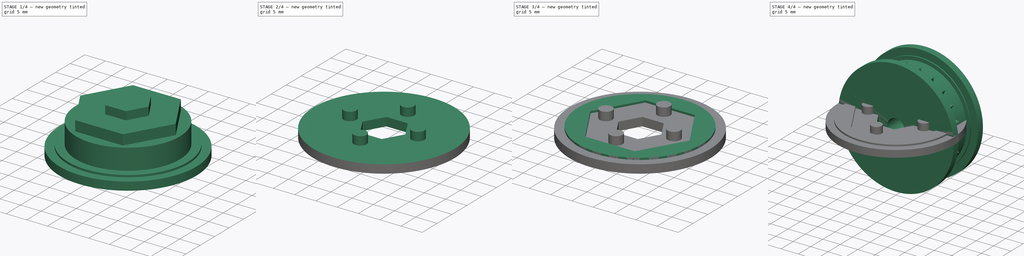
[diagram: build sequence overview — one tinted view per stage of 4, left to right]
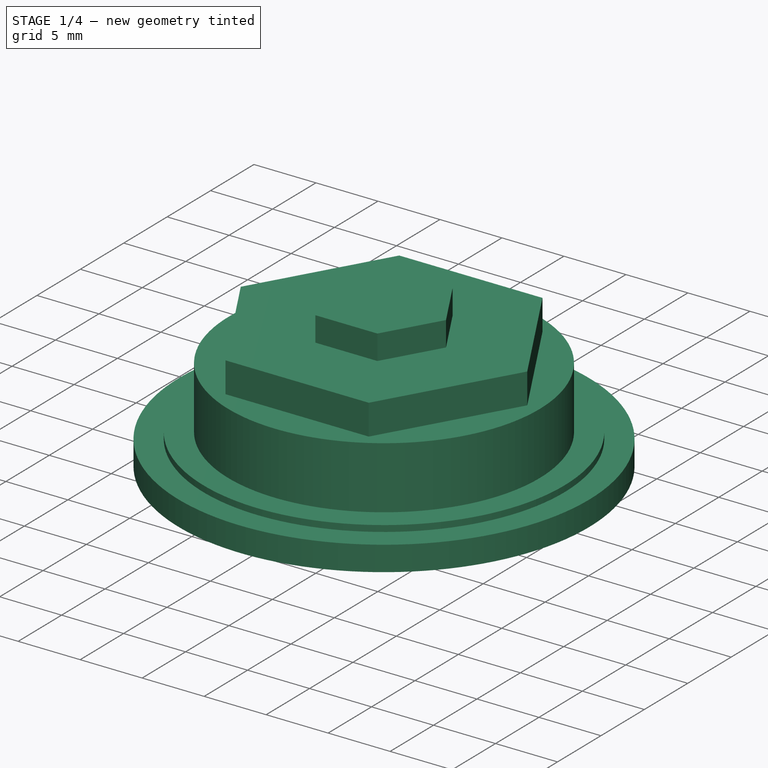
[diagram: stage 1 of 4 — iso view after this stage's code; geometry added in this stage tinted green]
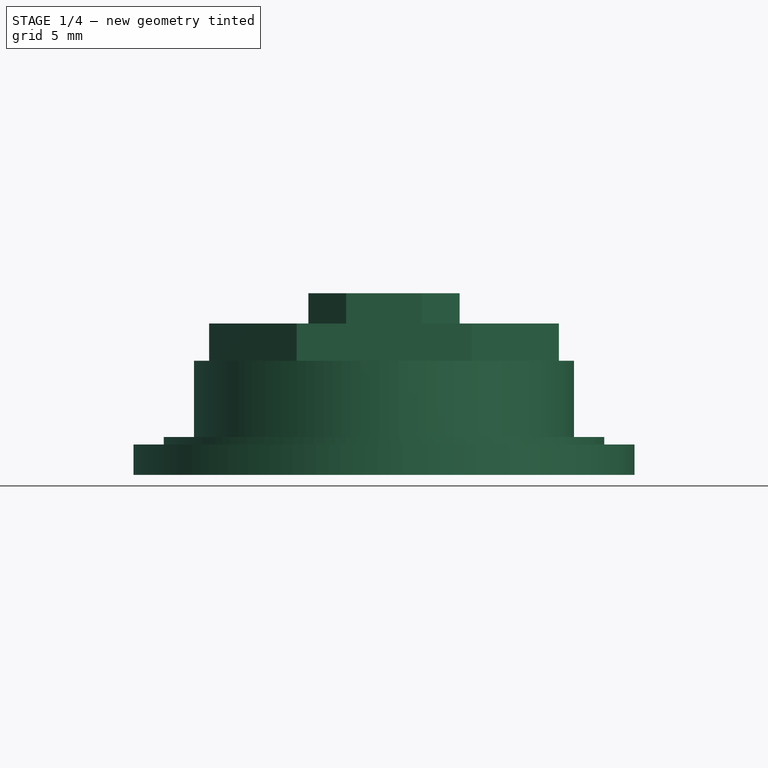
[diagram: stage 1 of 4 — front view after this stage's code; geometry added in this stage tinted green]
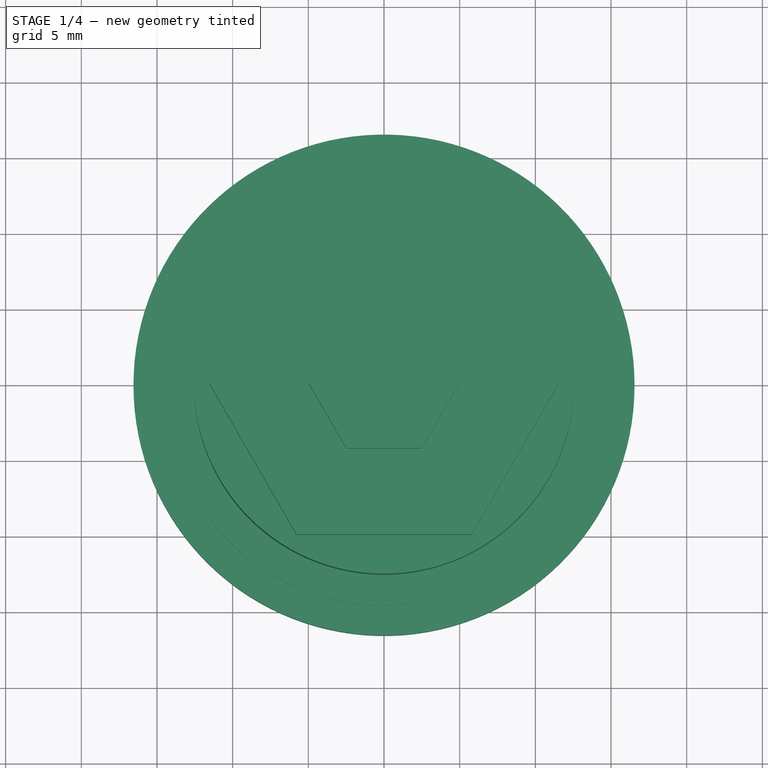
[diagram: stage 1 of 4 — top view after this stage's code; geometry added in this stage tinted green]
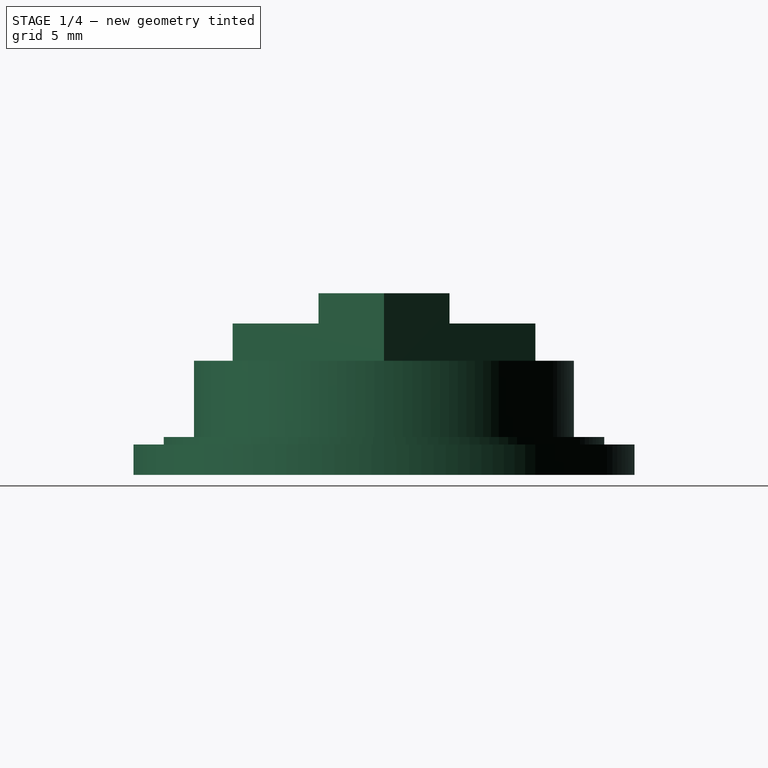
[diagram: stage 1 of 4 — right view after this stage's code; geometry added in this stage tinted green]
FCSTD DOCUMENT  (FreeCAD 0.20R29603 (Git))
Label: sprocketwheel
License: All rights reserved
LicenseURL: http://en.wikipedia.org/wiki/All_rights_reserved
objects: Sketcher::SketchObject×10, PartDesign::Pad×7, PartDesign::Body×4, PartDesign::PolarPattern×3, PartDesign::Revolution×2, Spreadsheet::Sheet×1, PartDesign::Pocket×1, PartDesign::SubShapeBinder×1
note: 38 computed .brp shape members not serialized (recipe doc carries the construction recipe); baked Part::Feature solids carry a one-line shape summary decoded from their .brp

FEATURE [PartDesign::Body] Body  label="complete"
  Group = -> [Sketch,Revolution,Sketch001,Pad,PolarPattern]
  Origin = -> Origin
  Placement = pos=(0,37,12) rot=(-1,0,0;1.5708rad)
  Tip = -> PolarPattern
FEATURE [Sketcher::SketchObject] Sketch008
  FullyConstrained = true
  MapMode = 5
  Placement = pos=(0,0,0) rot=(1,0,0;1.5708rad)
  Support = -> [XZ_Plane001]
  expr: Constraints[12] = 0.5 mm
  expr: Constraints[15] = 8 - (Spreadsheet.sd + Spreadsheet.sw / 2 + Spreadsheet.swm * Spreadsheet.sw / 2)
  expr: Constraints[22] = <<Parameters>>.r1
  sketch-geometry (8):
    g0: LineSegment StartX=2.55 StartY=0 StartZ=0 EndX=16.5531 EndY=0 EndZ=0
    g1: LineSegment StartX=16.5531 StartY=0 StartZ=0 EndX=16.5531 EndY=2 EndZ=0
    g2: LineSegment StartX=16.5531 StartY=2 StartZ=0 EndX=14.5531 EndY=2 EndZ=0
    g3: LineSegment StartX=14.5531 StartY=2 StartZ=0 EndX=14.5531 EndY=2.5 EndZ=0
    g4: LineSegment StartX=14.5531 StartY=2.5 StartZ=0 EndX=12.5531 EndY=2.5 EndZ=0
    g5: LineSegment StartX=12.5531 StartY=2.5 StartZ=0 EndX=12.5531 EndY=7.5345 EndZ=0
    g6: LineSegment StartX=12.5531 StartY=7.5345 StartZ=0 EndX=2.55 EndY=7.5345 EndZ=0
    g7: LineSegment StartX=2.55 StartY=7.5345 StartZ=0 EndX=2.55 EndY=0 EndZ=0
  constraints (24):
    c: PointOnObject(g0,g-1)
    c: PointOnObject(g0,g-1)
    c: Coincident(g0,g1)
    c: Vertical(g1)
    c: Coincident(g1,g2)
    c: Horizontal(g2)
    c: Coincident(g2,g3)
    c: Coincident(g3,g4)
    c: Horizontal(g4)
    c: Coincident(g4,g5)
    c: Vertical(g5)
    c: DistanceY(g1,g1) = 2
    c: DistanceY(g3,g3) = 0.5
    c: Vertical(g3)
    c: DistanceX(g2,g2) = 2
    c: DistanceY(g2,g6) = 5.5345
    c: Horizontal(g6)
    c: Vertical(g0,g6)
    c: DistanceX(g-1,g0) = 2.55
    c: Coincident(g7,g6)
    c: Coincident(g7,g0)
    c: Coincident(g5,g6)
    c: DistanceX(g-1,g3) = 14.5531
    c: DistanceX(g4,g4) = 2
FEATURE [PartDesign::Revolution] Revolution001
  Angle = 360
  Axis = (0,-2e-16,1)
  Base = (0,0,0)
  Placement = pos=(0,0,0) rot=(1,0,0;1.5708rad)
  Profile = -> Sketch008
  ReferenceAxis = -> Sketch008 [V_Axis]
  Refine = true
  Reversed = true
FEATURE [Sketcher::SketchObject] Sketch009
  FullyConstrained = true
  MapMode = 5
  Placement = pos=(0,-1.7e-15,7.5345) rot=(0,0,1;3.14159rad)
  Support = -> [Revolution001]
  expr: Constraints[19] = <<Parameters>>.r1 - 3
  sketch-geometry (7):
    g0: LineSegment StartX=11.5531 StartY=0 StartZ=0 EndX=5.77656 EndY=10.0053 EndZ=0
    g1: LineSegment StartX=5.77656 StartY=10.0053 StartZ=0 EndX=-5.77656 EndY=10.0053 EndZ=0
    g2: LineSegment StartX=-5.77656 StartY=10.0053 StartZ=0 EndX=-11.5531 EndY=0 EndZ=0
    g3: LineSegment StartX=-11.5531 StartY=0 StartZ=0 EndX=-5.77656 EndY=-10.0053 EndZ=0
    g4: LineSegment StartX=-5.77656 StartY=-10.0053 StartZ=0 EndX=5.77656 EndY=-10.0053 EndZ=0
    g5: LineSegment StartX=5.77656 StartY=-10.0053 StartZ=0 EndX=11.5531 EndY=0 EndZ=0
    g6: Circle CenterX=0 CenterY=0 CenterZ=0 NormalX=0 NormalY=0 NormalZ=1 AngleXU=0 Radius=11.5531
  constraints (16):
    c: Coincident(g0,g1)
    c: Coincident(g1,g2)
    c: Coincident(g2,g3)
    c: Coincident(g3,g4)
    c: Coincident(g4,g5)
    c: Coincident(g5,g0)
    c: Equal(g0, g1-g5) x5
    c: PointOnObject(g0,g6)
    c: PointOnObject(g1,g6)
    c: PointOnObject(g2,g6)
    c: PointOnObject(g3,g6)
    c: PointOnObject(g4,g6)
    c: PointOnObject(g5,g6)
    c: Coincident(g6,g-1)
    c: PointOnObject(g5,g-1)
    c: Radius(g6) = 11.5531
FEATURE [PartDesign::Pad] Pad001
  BaseFeature = -> Revolution001
  Direction = (0,-2e-16,1)
  Length = 2.4655
  Length2 = 10
  Placement = pos=(0,0,0) rot=(1,0,0;1.5708rad)
  Profile = -> Sketch009
  ReferenceAxis = -> Sketch009 [N_Axis]
  Refine = true
  Type = 0
  expr: Length = Spreadsheet.sd + Spreadsheet.sw / 2 + Spreadsheet.swm * Spreadsheet.sw / 2
FEATURE [Sketcher::SketchObject] Sketch010
  FullyConstrained = true
  MapMode = 5
  Placement = pos=(0,-2.7e-15,10) rot=(0,0,1;3.14159rad)
  Support = -> [Pad001]
  expr: Constraints[19] = min(<<Parameters>>.r1 - 4.5; 5)
  sketch-geometry (7):
    g0: LineSegment StartX=5 StartY=1e-16 StartZ=0 EndX=2.5 EndY=4.33013 EndZ=0
    g1: LineSegment StartX=2.5 StartY=4.33013 StartZ=0 EndX=-2.5 EndY=4.33013 EndZ=0
    g2: LineSegment StartX=-2.5 StartY=4.33013 StartZ=0 EndX=-5 EndY=-8.82814e-11 EndZ=0
    g3: LineSegment StartX=-5 StartY=-8.82813e-11 StartZ=0 EndX=-2.5 EndY=-4.33013 EndZ=0
    g4: LineSegment StartX=-2.5 StartY=-4.33013 StartZ=0 EndX=2.5 EndY=-4.33013 EndZ=0
    g5: LineSegment StartX=2.5 StartY=-4.33013 StartZ=0 EndX=5 EndY=0 EndZ=0
    g6: Circle CenterX=0 CenterY=0 CenterZ=0 NormalX=0 NormalY=0 NormalZ=1 AngleXU=0 Radius=5
  constraints (16):
    c: Coincident(g0,g1)
    c: Coincident(g1,g2)
    c: Coincident(g2,g3)
    c: Coincident(g3,g4)
    c: Coincident(g4,g5)
    c: Coincident(g5,g0)
    c: Equal(g0, g1-g5) x5
    c: PointOnObject(g0,g6)
    c: PointOnObject(g1,g6)
    c: PointOnObject(g2,g6)
    c: PointOnObject(g3,g6)
    c: PointOnObject(g4,g6)
    c: PointOnObject(g5,g6)
    c: Coincident(g6,g-1)
    c: PointOnObject(g5,g-1)
    c: Radius(g6) = 5
FEATURE [PartDesign::Pad] Pad002
  BaseFeature = -> Pad001
  Direction = (0,-3e-16,1)
  Length = 2
  Length2 = 10
  Placement = pos=(0,0,0) rot=(1,0,0;1.5708rad)
  Profile = -> Sketch010
  ReferenceAxis = -> Sketch010 [N_Axis]
  Refine = true
  Type = 0
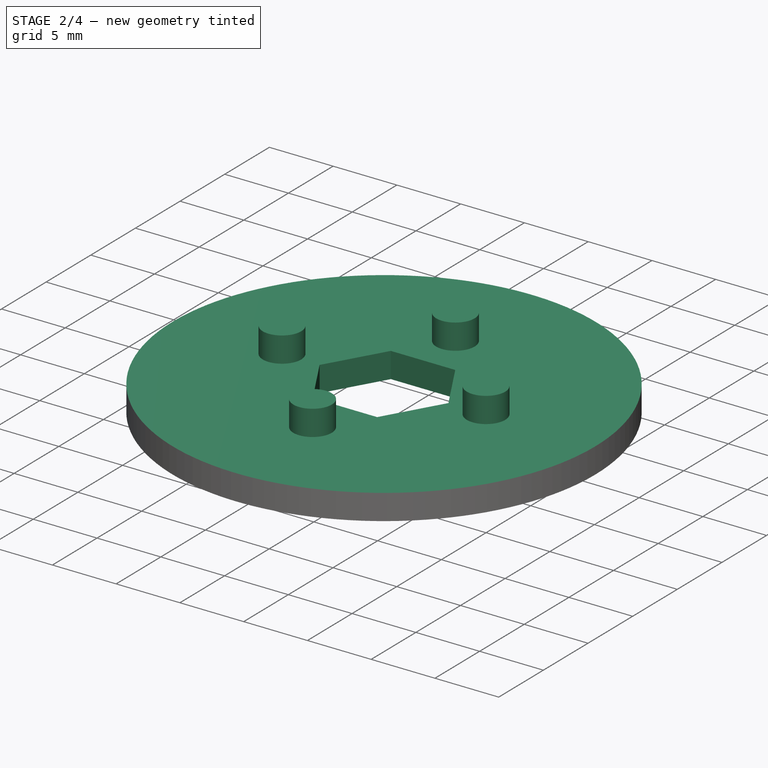
[diagram: stage 2 of 4 — iso view after this stage's code; geometry added in this stage tinted green]
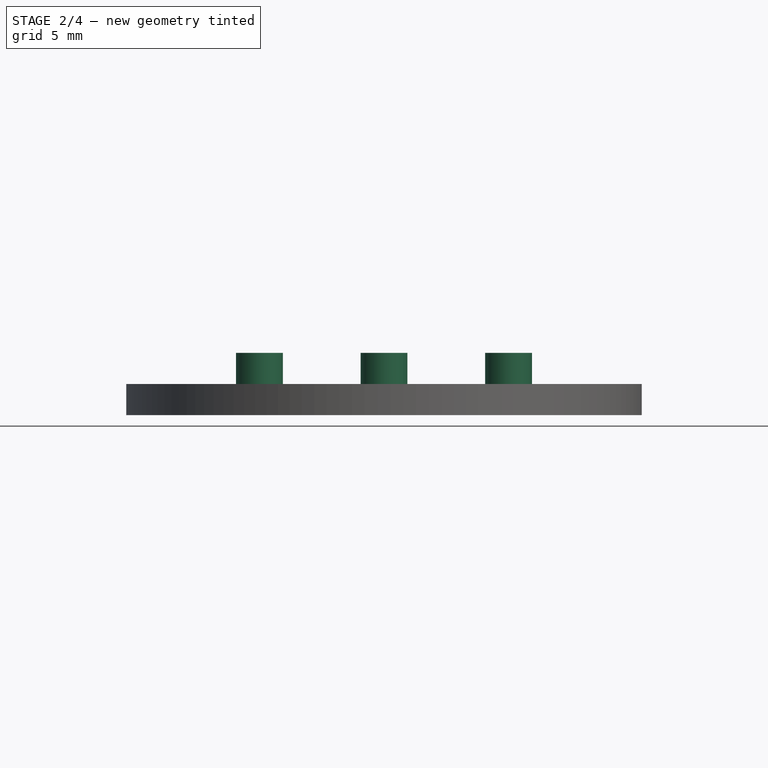
[diagram: stage 2 of 4 — front view after this stage's code; geometry added in this stage tinted green]
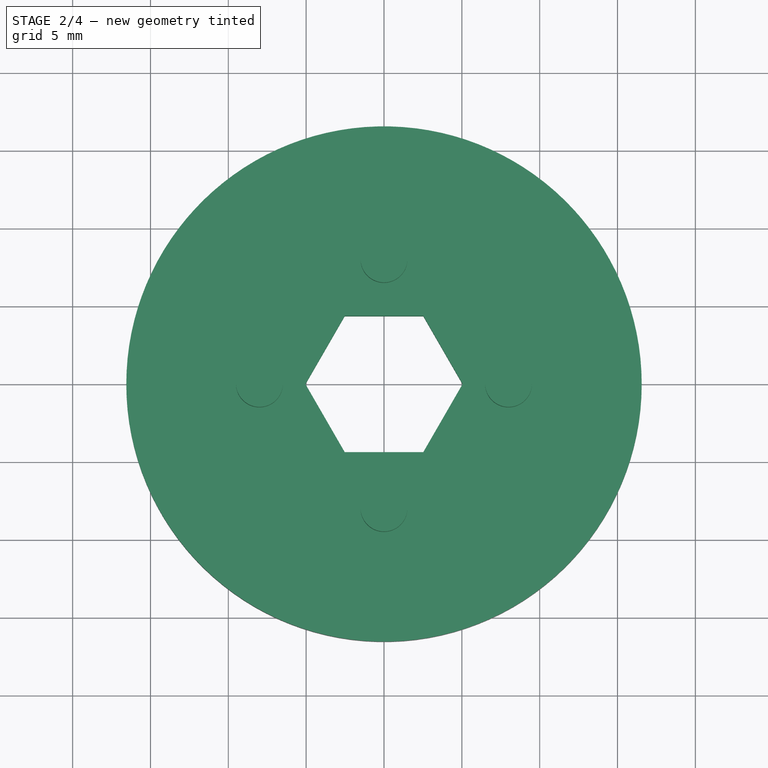
[diagram: stage 2 of 4 — top view after this stage's code; geometry added in this stage tinted green]
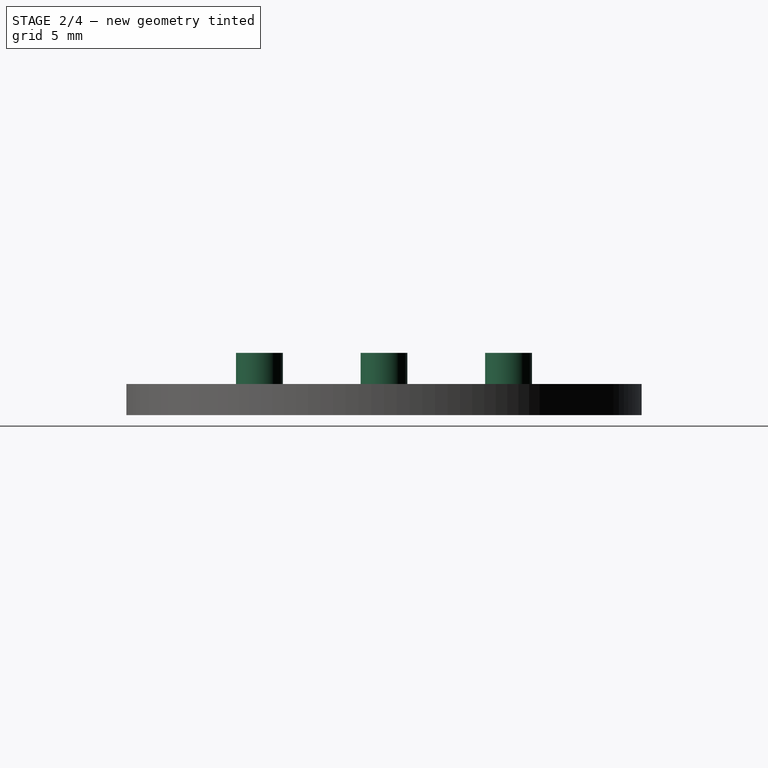
[diagram: stage 2 of 4 — right view after this stage's code; geometry added in this stage tinted green]
FEATURE [PartDesign::Body] Body002  label="sprockets"
  Group = -> [Sketch012,Pad003,PolarPattern001,Sketch014,Pad004,Sketch015,Pocket]
  Origin = -> Origin002
  Placement = pos=(0,-1,0) rot=(0,0,1;0rad)
  Tip = -> Pocket
FEATURE [PartDesign::SubShapeBinder] Binder
  BindCopyOnChange = 0
  BindMode = 0
  ClaimChildren = false
  Context = -> Body003 [Binder.]
  Fuse = false
  MakeFace = true
  OffsetFill = false
  OffsetIntersection = false
  OffsetJoinType = 0
  OffsetOpenResult = false
  PartialLoad = false
  Refine = true
  Relative = false
  Support = -> [Body001[Pad002.Sketch010.]]
  _Version = 2
FEATURE [Sketcher::SketchObject] Sketch016
  ExternalGeometry = -> [Binder]
  FullyConstrained = true
  MapMode = 5
  Support = -> [XY_Plane003]
  expr: Constraints[0] = max(12; <<Parameters>>.r1 + 2)
  expr: Constraints[20] = min(<<Parameters>>.r1 - 4.5 + 0.05; 5.05)
  sketch-geometry (8):
    g0: Circle CenterX=2e-16 CenterY=0 CenterZ=0 NormalX=0 NormalY=0 NormalZ=1 AngleXU=0 Radius=16.5531
    g1: LineSegment StartX=5.05 StartY=0 StartZ=0 EndX=2.525 EndY=4.37343 EndZ=0
    g2: LineSegment StartX=2.525 StartY=4.37343 StartZ=0 EndX=-2.525 EndY=4.37343 EndZ=0
    g3: LineSegment StartX=-2.525 StartY=4.37343 StartZ=0 EndX=-5.05 EndY=-8.82361e-11 EndZ=0
    g4: LineSegment StartX=-5.05 StartY=-8.82361e-11 StartZ=0 EndX=-2.525 EndY=-4.37343 EndZ=0
    g5: LineSegment StartX=-2.525 StartY=-4.37343 StartZ=0 EndX=2.525 EndY=-4.37343 EndZ=0
    g6: LineSegment StartX=2.525 StartY=-4.37343 StartZ=0 EndX=5.05 EndY=0 EndZ=0
    g7: Circle CenterX=2e-16 CenterY=0 CenterZ=0 NormalX=0 NormalY=0 NormalZ=1 AngleXU=0 Radius=5.05
  constraints (18):
    c: Radius(g0) = 16.5531
    c: Coincident(g1,g2)
    c: Coincident(g2,g3)
    c: Coincident(g3,g4)
    c: Coincident(g4,g5)
    c: Coincident(g5,g6)
    c: Coincident(g6,g1)
    c: Equal(g1, g2-g6) x5
    c: PointOnObject(g1,g7)
    c: PointOnObject(g2,g7)
    c: PointOnObject(g3,g7)
    c: PointOnObject(g4,g7)
    c: PointOnObject(g5,g7)
    c: PointOnObject(g6,g7)
    c: Coincident(g7,g0)
    c: PointOnObject(g6,g-1)
    c: Radius(g7) = 5.05
    c: Coincident(g0,g-1)
FEATURE [PartDesign::Pad] Pad005
  Direction = (0,0,1)
  Length = 2
  Length2 = 10
  Profile = -> Sketch016
  ReferenceAxis = -> Sketch016 [N_Axis]
  Refine = true
  Type = 0
FEATURE [Sketcher::SketchObject] Sketch017
  FullyConstrained = true
  MapMode = 5
  Placement = pos=(0,0,2) rot=(0,0,1;0rad)
  Support = -> [Pad005]
  sketch-geometry (1):
    g0: Circle CenterX=8 CenterY=0 CenterZ=0 NormalX=0 NormalY=0 NormalZ=1 AngleXU=0 Radius=1.505
  constraints (3):
    c: PointOnObject(g0,g-1)
    c: DistanceX(g-1,g0) = 8
    c: Radius(g0) = 1.505
FEATURE [PartDesign::Pad] Pad006
  BaseFeature = -> Pad005
  Direction = (0,0,1)
  Length = 2
  Length2 = 10
  Profile = -> Sketch017
  ReferenceAxis = -> Sketch017 [N_Axis]
  Refine = true
  Type = 0
FEATURE [PartDesign::PolarPattern] PolarPattern002
  Angle = 360
  Axis = -> Sketch017 [N_Axis]
  BaseFeature = -> Pad006
  Occurrences = 4
  Originals = -> [Pad006]
  Refine = true
FEATURE [PartDesign::Body] Body003  label="connector"
  Group = -> [Binder,Sketch016,Pad005,Sketch017,Pad006,PolarPattern002]
  Origin = -> Origin003
  Placement = pos=(42,0,0) rot=(0,0,1;0rad)
  Tip = -> PolarPattern002
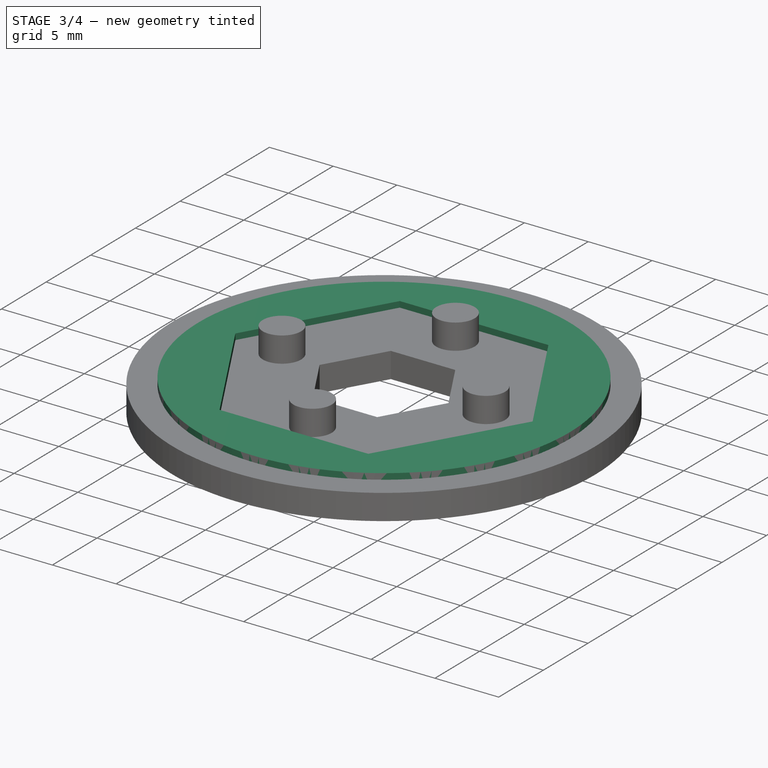
[diagram: stage 3 of 4 — iso view after this stage's code; geometry added in this stage tinted green]
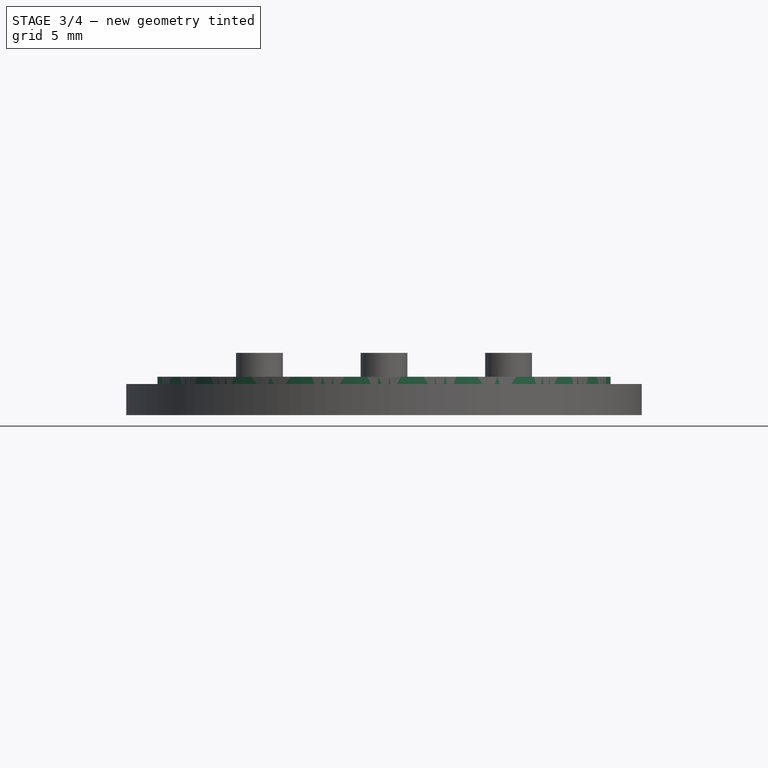
[diagram: stage 3 of 4 — front view after this stage's code; geometry added in this stage tinted green]
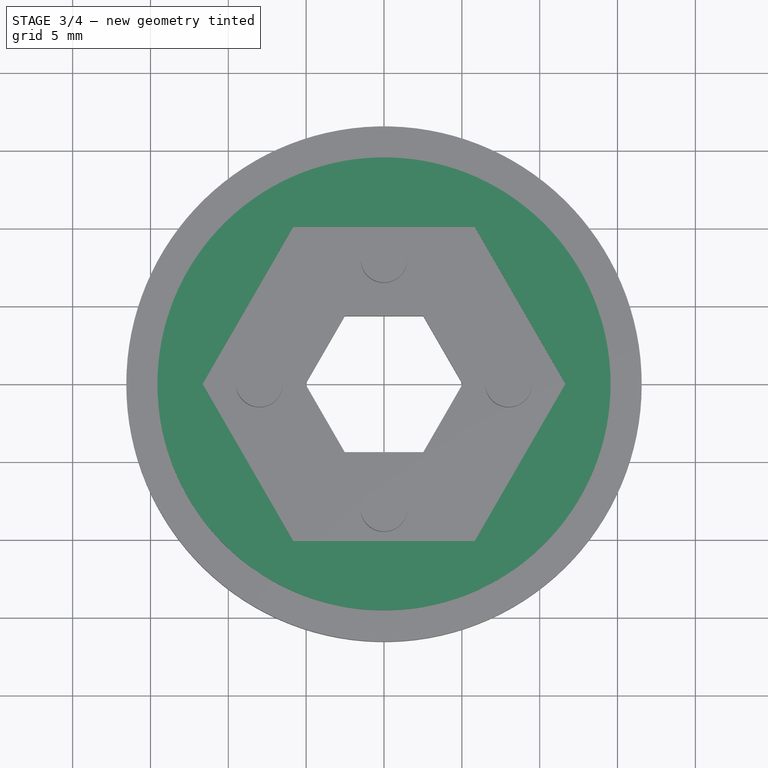
[diagram: stage 3 of 4 — top view after this stage's code; geometry added in this stage tinted green]
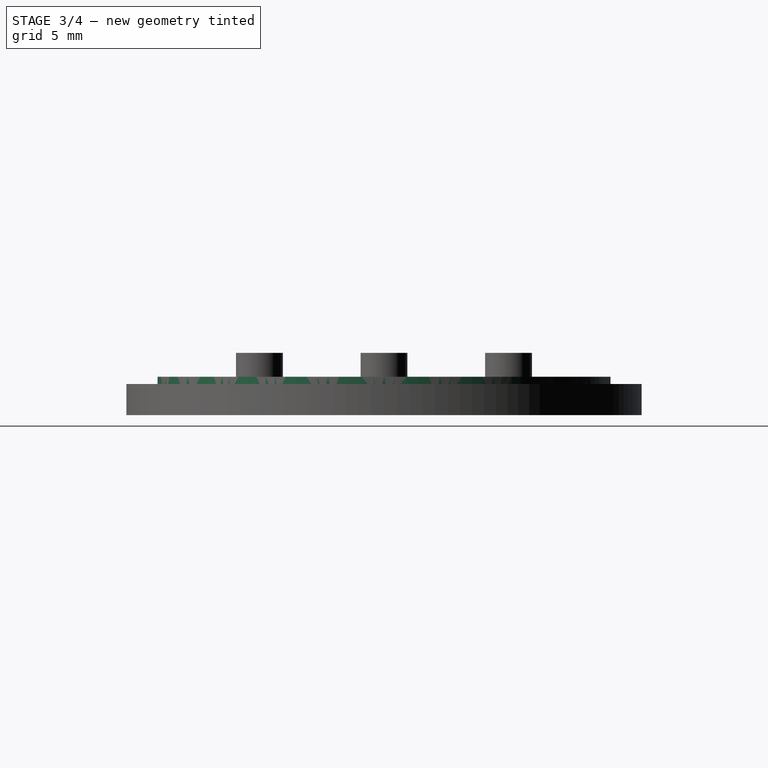
[diagram: stage 3 of 4 — right view after this stage's code; geometry added in this stage tinted green]
FEATURE [PartDesign::Body] Body001  label="wheel"
  Group = -> [Sketch008,Revolution001,Sketch009,Pad001,Sketch010,Pad002]
  Origin = -> Origin001
  Placement = pos=(-45,-1,0) rot=(0,0,1;0rad)
  Tip = -> Pad002
FEATURE [Sketcher::SketchObject] Sketch012
  FullyConstrained = true
  MapMode = 5
  Support = -> [XY_Plane002]
  expr: Constraints[3] = Spreadsheet.r1
  expr: Constraints[4] = <<Parameters>>.sl * 0.8
  sketch-geometry (4):
    g0: GeomPoint X=0 Y=14.546 Z=0
    g1: ArcOfCircle CenterX=0 CenterY=0 CenterZ=0 NormalX=0 NormalY=0 NormalZ=1 AngleXU=0 Radius=14.5531 StartAngle=1.60213 EndAngle=7.82264
    g2: ArcOfCircle CenterX=2.69511 CenterY=16.046 CenterZ=0 NormalX=0 NormalY=0 NormalZ=1 AngleXU=0 Radius=2.69511 StartAngle=3.14159 EndAngle=3.73184
    g3: ArcOfCircle CenterX=-2.69511 CenterY=16.046 CenterZ=0 NormalX=0 NormalY=0 NormalZ=1 AngleXU=0 Radius=2.69511 StartAngle=5.69294 EndAngle=6.28319
  constraints (11):
    c: Symmetric(g1,g1,g0)
    c: PointOnObject(g0,g-2)
    c: Coincident(g1,g-1)
    c: Radius(g1) = 14.5531
    c: DistanceX(g1,g1) = 0.912
    c: Coincident(g2,g1)
    c: PointOnObject(g2,g-2)
    c: Coincident(g3,g2)
    c: Coincident(g3,g1)
    c: Symmetric(g3,g2,g2)
    c: DistanceY(g0,g2) = 1.5
FEATURE [PartDesign::Pad] Pad003
  Direction = (0,0,1)
  Length = 1.281
  Length2 = 10
  Profile = -> Sketch012
  ReferenceAxis = -> Sketch012 [N_Axis]
  Refine = true
  Type = 0
  expr: Length = <<Parameters>>.sw * <<Parameters>>.swm
FEATURE [PartDesign::PolarPattern] PolarPattern001
  Angle = 360
  Axis = -> Sketch012 [N_Axis]
  BaseFeature = -> Pad003
  Occurrences = 24
  Originals = -> [Pad003]
  Refine = true
  expr: Occurrences = <<Parameters>>.n
FEATURE [Sketcher::SketchObject] Sketch014
  FullyConstrained = true
  MapMode = 5
  expr: Constraints[1] = <<Parameters>>.r1
  sketch-geometry (1):
    g0: Circle CenterX=0 CenterY=0 CenterZ=0 NormalX=0 NormalY=0 NormalZ=1 AngleXU=0 Radius=14.5531
  constraints (2):
    c: Coincident(g0,g-1)
    c: Radius(g0) = 14.5531
FEATURE [PartDesign::Pad] Pad004
  BaseFeature = -> PolarPattern001
  Direction = (0,0,1)
  Length = 2.4655
  Length2 = 10
  Profile = -> Sketch014
  ReferenceAxis = -> Sketch014 [N_Axis]
  Refine = true
  Type = 0
  expr: Length = Spreadsheet.sd + Spreadsheet.sw / 2 + Spreadsheet.swm * Spreadsheet.sw / 2
FEATURE [Sketcher::SketchObject] Sketch015
  FullyConstrained = true
  MapMode = 5
  Placement = pos=(0,0,2.4655) rot=(0,0,1;0rad)
  expr: Constraints[19] = <<Parameters>>.r1 - 3 + 0.1
  sketch-geometry (7):
    g0: LineSegment StartX=11.6531 StartY=0 StartZ=0 EndX=5.82656 EndY=10.0919 EndZ=0
    g1: LineSegment StartX=5.82656 StartY=10.0919 StartZ=0 EndX=-5.82656 EndY=10.0919 EndZ=0
    g2: LineSegment StartX=-5.82656 StartY=10.0919 StartZ=0 EndX=-11.6531 EndY=0 EndZ=0
    g3: LineSegment StartX=-11.6531 StartY=4e-16 StartZ=0 EndX=-5.82656 EndY=-10.0919 EndZ=0
    g4: LineSegment StartX=-5.82656 StartY=-10.0919 StartZ=0 EndX=5.82656 EndY=-10.0919 EndZ=0
    g5: LineSegment StartX=5.82656 StartY=-10.0919 StartZ=0 EndX=11.6531 EndY=0 EndZ=0
    g6: Circle CenterX=0 CenterY=0 CenterZ=0 NormalX=0 NormalY=0 NormalZ=1 AngleXU=0 Radius=11.6531
  constraints (16):
    c: Coincident(g0,g1)
    c: Coincident(g1,g2)
    c: Coincident(g2,g3)
    c: Coincident(g3,g4)
    c: Coincident(g4,g5)
    c: Coincident(g5,g0)
    c: Equal(g0, g1-g5) x5
    c: PointOnObject(g0,g6)
    c: PointOnObject(g1,g6)
    c: PointOnObject(g2,g6)
    c: PointOnObject(g3,g6)
    c: PointOnObject(g4,g6)
    c: PointOnObject(g5,g6)
    c: Coincident(g6,g-1)
    c: PointOnObject(g5,g-1)
    c: Radius(g6) = 11.6531
FEATURE [PartDesign::Pocket] Pocket
  BaseFeature = -> Pad004
  Direction = (0,0,-1)
  Length = 5
  Length2 = 5
  Profile = -> Sketch015
  ReferenceAxis = -> Sketch015 [N_Axis]
  Refine = true
  Type = 1
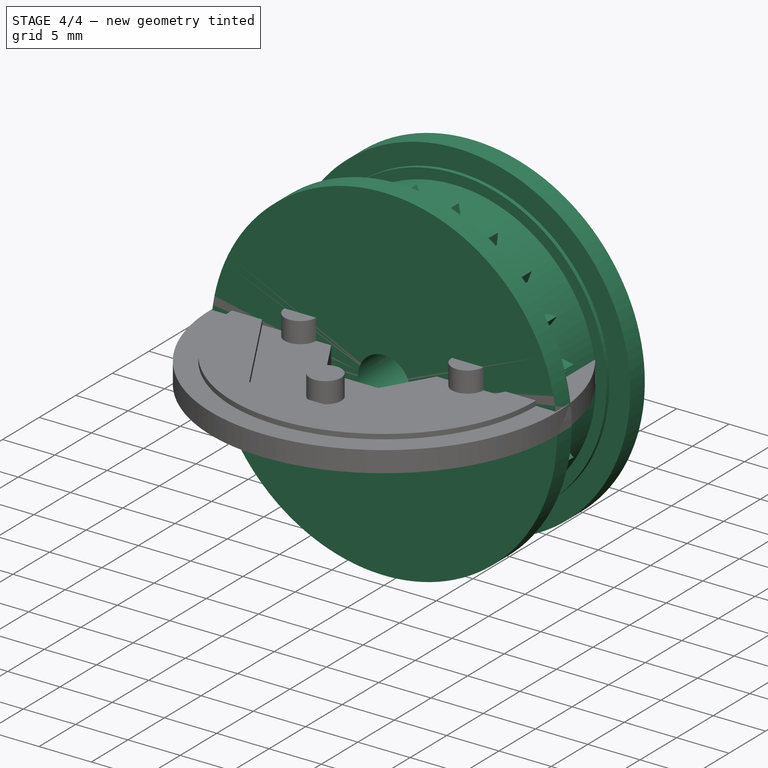
[diagram: stage 4 of 4 — iso view after this stage's code; geometry added in this stage tinted green]
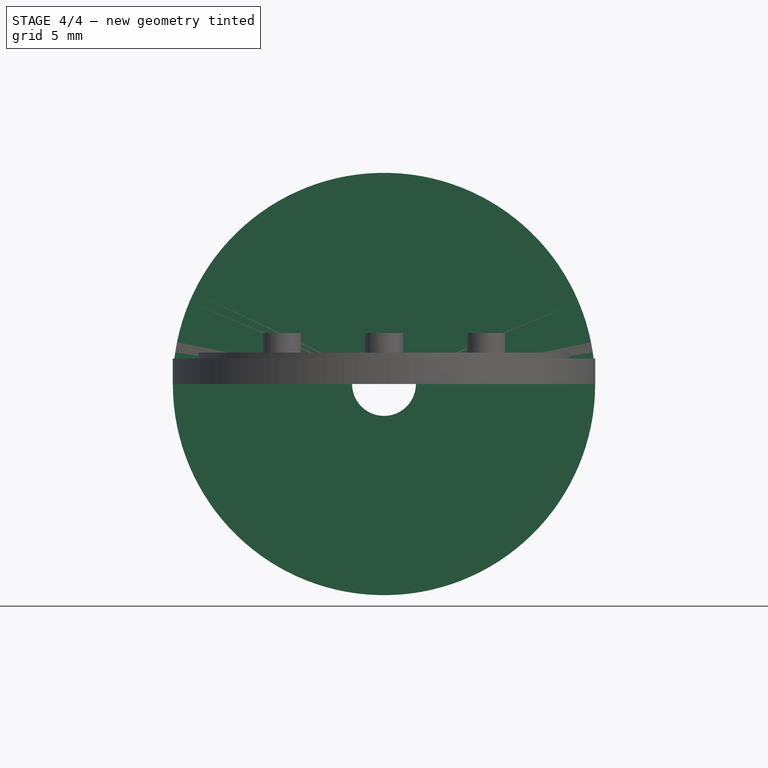
[diagram: stage 4 of 4 — front view after this stage's code; geometry added in this stage tinted green]
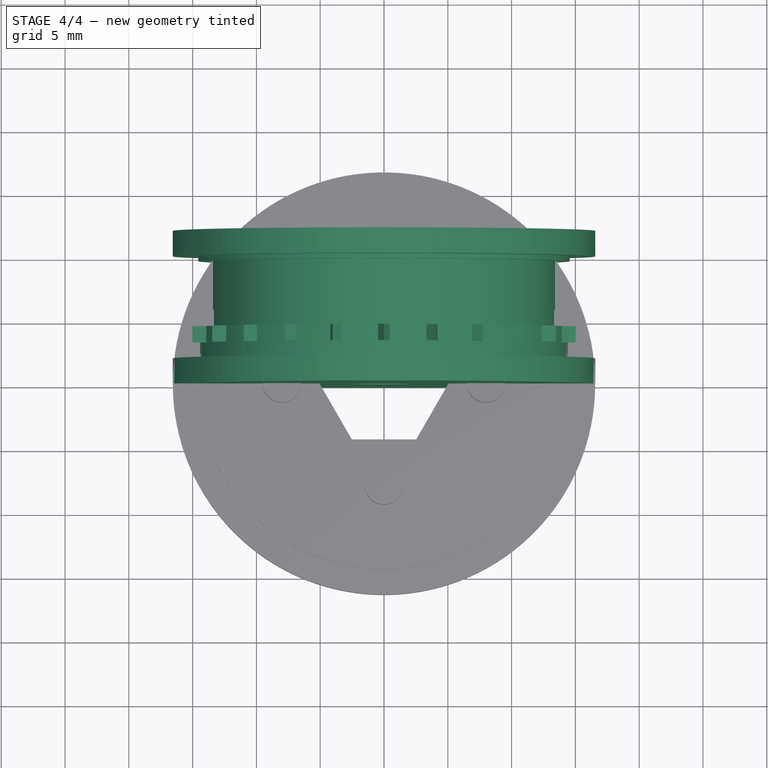
[diagram: stage 4 of 4 — top view after this stage's code; geometry added in this stage tinted green]
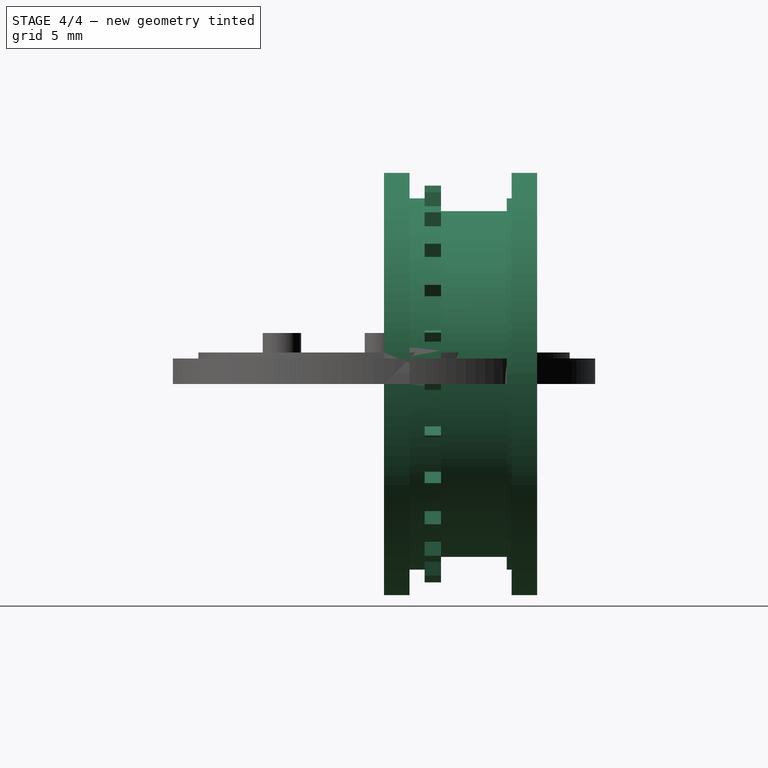
[diagram: stage 4 of 4 — right view after this stage's code; geometry added in this stage tinted green]
FEATURE [Sketcher::SketchObject] Sketch
  FullyConstrained = true
  MapMode = 5
  Support = -> [XY_Plane]
  expr: Constraints[24] = Spreadsheet.r1
  expr: Constraints[27] = Spreadsheet.cw
  expr: Constraints[29] = Spreadsheet.sd + Spreadsheet.sw / 2 + Spreadsheet.swm * Spreadsheet.sw / 2
  expr: Constraints[30] = Spreadsheet.iw + Spreadsheet.sw * (1 - Spreadsheet.swm) / 2
  expr: Constraints[35] = Spreadsheet.thickness
  sketch-geometry (12):
    g0: LineSegment StartX=2.5 StartY=0 StartZ=0 EndX=2.5 EndY=12 EndZ=0
    g1: LineSegment StartX=2.5 StartY=12 StartZ=0 EndX=16.5531 EndY=12 EndZ=0
    g2: LineSegment StartX=16.5531 StartY=12 StartZ=0 EndX=16.5531 EndY=10 EndZ=0
    g3: LineSegment StartX=16.5531 StartY=10 StartZ=0 EndX=14.5531 EndY=10 EndZ=0
    g4: LineSegment StartX=14.5531 StartY=4.4655 StartZ=0 EndX=13.5531 EndY=4.4655 EndZ=0
    g5: LineSegment StartX=13.5531 StartY=4.4655 StartZ=0 EndX=13.5531 EndY=9.62 EndZ=0
    g6: LineSegment StartX=13.5531 StartY=9.62 StartZ=0 EndX=14.5531 EndY=9.62 EndZ=0
    g7: LineSegment StartX=14.5531 StartY=4.4655 StartZ=0 EndX=14.5531 EndY=2 EndZ=0
    g8: LineSegment StartX=14.5531 StartY=2 StartZ=0 EndX=16.5531 EndY=2 EndZ=0
    g9: LineSegment StartX=16.5531 StartY=2 StartZ=0 EndX=16.5531 EndY=0 EndZ=0
    g10: LineSegment StartX=16.5531 StartY=0 StartZ=0 EndX=2.5 EndY=0 EndZ=0
    g11: LineSegment StartX=14.5531 StartY=10 StartZ=0 EndX=14.5531 EndY=9.62 EndZ=0
  constraints (37):
    c: PointOnObject(g0,g-1)
    c: Vertical(g0)
    c: Coincident(g0,g1)
    c: Horizontal(g1)
    c: Coincident(g1,g2)
    c: Vertical(g2)
    c: Coincident(g2,g3)
    c: Horizontal(g4)
    c: Coincident(g4,g5)
    c: Vertical(g5)
    c: Coincident(g5,g6)
    c: Vertical(g7)
    c: Coincident(g7,g8)
    c: Coincident(g8,g9)
    c: PointOnObject(g9,g-1)
    c: Vertical(g9)
    c: Coincident(g9,g10)
    c: Coincident(g10,g0)
    c: Vertical(g4,g6)
    c: Vertical(g2,g8)
    c: Horizontal(g8)
    c: Horizontal(g3)
    c: Horizontal(g6)
    c: DistanceX(g-1,g0) = 2.5  'shaft'
    c: DistanceX(g-1,g7) = 14.5531
    c: DistanceX(g5,g6) = 1
    c: DistanceX(g8,g8) = 2
    c: DistanceY(g8,g2) = 8
    c: Equal(g9,g2)
    c: DistanceY(g7,g4) = 2.4655
    c: DistanceY(g5,g5) = 5.1545
    c: Coincident(g11,g3)
    c: Coincident(g11,g6)
    c: Vertical(g11)
    c: Coincident(g4,g7)
    c: DistanceY(g0,g0) = 12
    c: DistanceY(g6,g2) = 0.38
FEATURE [Spreadsheet::Sheet] Spreadsheet  label="Parameters"
  cells = A1=theeth count; B1(n)=24; C1=super 8; A2= frame pitch; B2(fp)=3.81; C2=4.23; A3=radius; B3(r1)==B1 * B2 / (2 * pi); C3==B1 * B2 / (2 * pi); A4=sprocket width; B4(sw)=1.83; C4=0.91; A5=sprocket length; B5(sl)=1.14; A6=sprocket height; B6(sh)=1.5; A7=sprocket distance to border; B7(sd)=0.91; C7=0.51; A8=sprocked width multiplier; B8(swm)=0.7; A9=image width; B9(iw)=4.88; C9=5.79; A10=film channel width; B10(cw)=8; A11=thickness of wheel; B11(thickness)=12
FEATURE [PartDesign::Revolution] Revolution
  Angle = 360
  Axis = (0,1,0)
  Base = (0,0,0)
  Profile = -> Sketch
  ReferenceAxis = -> Sketch [V_Axis]
  Refine = true
  Reversed = true
FEATURE [Sketcher::SketchObject] Sketch001
  AttachmentOffset = pos=(0,0,-3.825) rot=(0,0,1;0rad)
  FullyConstrained = true
  MapMode = 5
  Placement = pos=(0,3.825,8e-16) rot=(1,0,0;1.5708rad)
  Support = -> [XZ_Plane]
  expr: .AttachmentOffset.Base.z = -((Spreadsheet.thickness - Spreadsheet.cw) / 2 + Spreadsheet.sd + Spreadsheet.sw / 2)
  expr: Constraints[7] = Spreadsheet.r1
  expr: Constraints[9] = <<Parameters>>.sl * 0.8
  sketch-geometry (5):
    g0: LineSegment StartX=0 StartY=15.546 StartZ=0 EndX=0.456 EndY=14.546 EndZ=0
    g1: LineSegment StartX=0.456 StartY=14.546 StartZ=0 EndX=-0.456 EndY=14.546 EndZ=0
    g2: LineSegment StartX=-0.456 StartY=14.546 StartZ=0 EndX=0 EndY=15.546 EndZ=0
    g3: GeomPoint X=0 Y=14.546 Z=0
    g4: Circle CenterX=0 CenterY=0 CenterZ=0 NormalX=0 NormalY=0 NormalZ=1 AngleXU=0 Radius=14.5531
  constraints (12):
    c: Coincident(g0,g1)
    c: Coincident(g1,g2)
    c: Horizontal(g1)
    c: DistanceY(g0,g0) = 1
    c: Symmetric(g0,g1,g3)
    c: PointOnObject(g3,g-2)
    c: Coincident(g4,g-1)
    c: Radius(g4) = 14.5531
    c: PointOnObject(g0,g4)
    c: DistanceX(g1,g0) = 0.912
    c: Coincident(g0,g2)
    c: PointOnObject(g0,g-2)
FEATURE [PartDesign::Pad] Pad
  BaseFeature = -> Revolution
  Direction = (0,-1,-2e-16)
  Length = 1.281
  Length2 = 10
  Midplane = true
  Profile = -> Sketch001
  ReferenceAxis = -> Sketch001 [N_Axis]
  Refine = true
  Type = 0
  expr: Length = <<Parameters>>.sw * <<Parameters>>.swm
FEATURE [PartDesign::PolarPattern] PolarPattern
  Angle = 360
  Axis = -> Sketch001 [N_Axis]
  BaseFeature = -> Pad
  Occurrences = 24
  Originals = -> [Pad]
  Refine = true
  expr: Occurrences = Spreadsheet.n
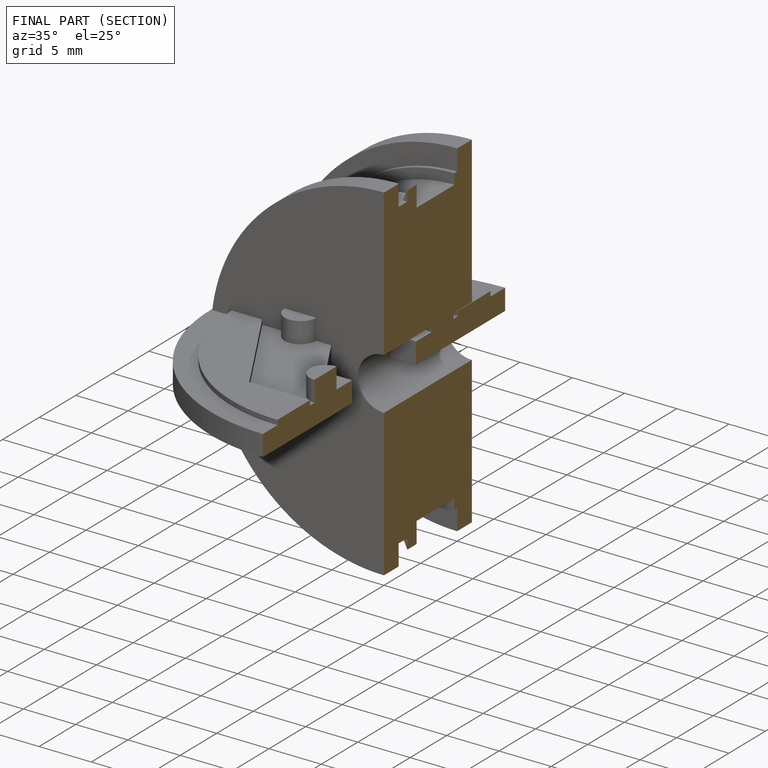
[diagram: finished part — half-section view (interior)]
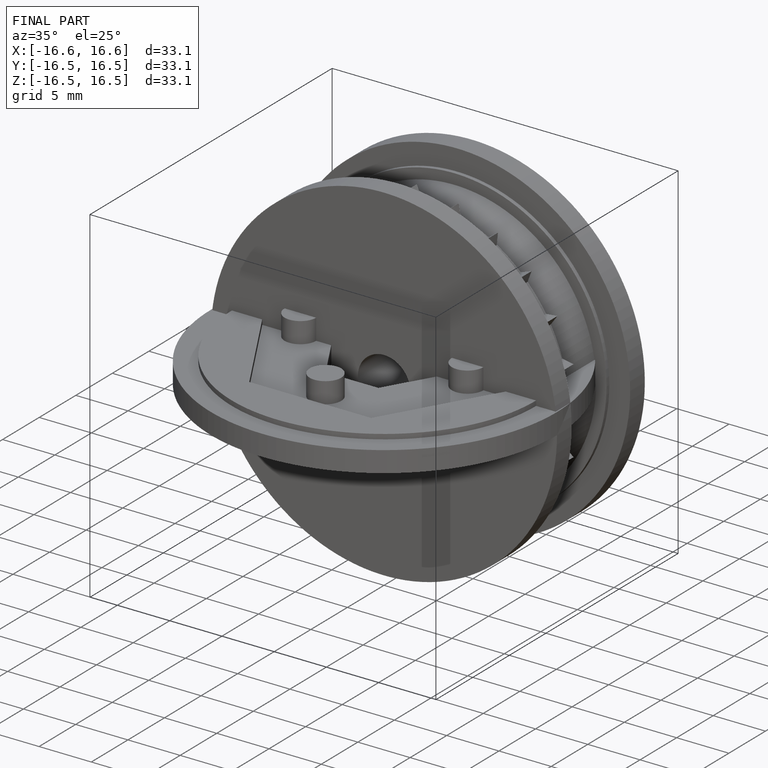
[diagram: finished part — iso view with bounding-box wireframe]
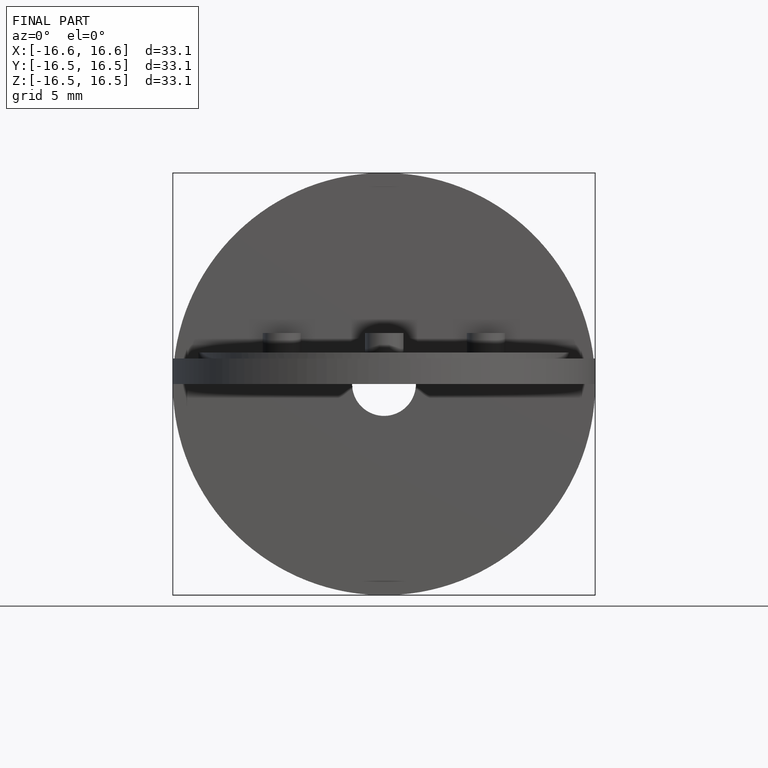
[diagram: finished part — front view with bounding-box wireframe]
